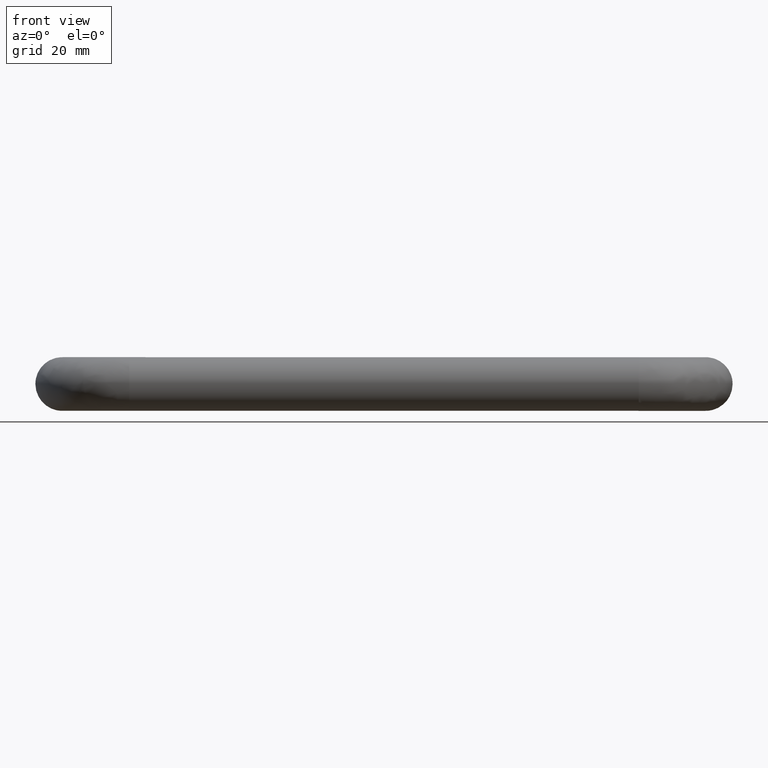
[diagram: clean part render]
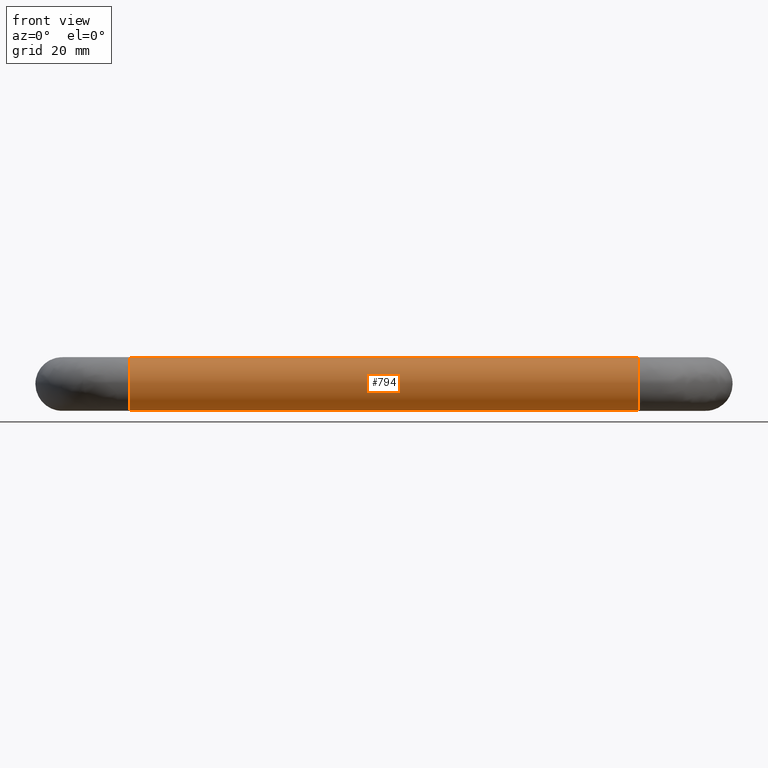
[diagram: same view with one face highlighted and labeled with its STEP entity id]
A machine part, front view. The second image highlights one B-rep face of the part: STEP entity #794.
In plain terms, the highlighted face is a freeform B-spline surface patch.
Its self-contained STEP definition (entity closure, byte-faithful):
#624=CARTESIAN_POINT('',(10.124999941214483,-30.521972536820851,2.224245948408881));
#625=CARTESIAN_POINT('',(10.124999941214483,-30.856101220587441,2.896940181352409));
#626=CARTESIAN_POINT('',(10.124999941214480,-31.373128144938558,3.441772878468769));
#627=CARTESIAN_POINT('',(10.124999941214483,-34.814901023407330,7.068644733530205));
#628=CARTESIAN_POINT('',(10.124999941214480,-38.441772878468768,3.626871855061437));
#629=CARTESIAN_POINT('',(10.124999941214483,-42.068644733530206,0.185098976592668));
#630=CARTESIAN_POINT('',(10.124999941214480,-38.626871855061438,-3.441772878468769));
#631=CARTESIAN_POINT('',(10.124999941214483,-35.185098976592663,-7.068644733530205));
#632=CARTESIAN_POINT('',(10.124999941214480,-31.558227121531232,-3.626871855061437));
#633=CARTESIAN_POINT('',(109.934375002968050,-30.521972536820840,2.224245948408881));
#634=CARTESIAN_POINT('',(109.934375002968100,-30.856101220587430,2.896940181352409));
#635=CARTESIAN_POINT('',(109.934375002968100,-31.373128144938558,3.441772878468769));
#636=CARTESIAN_POINT('',(109.934375002968050,-34.814901023407316,7.068644733530205));
#637=CARTESIAN_POINT('',(109.934375002968100,-38.441772878468761,3.626871855061437));
#638=CARTESIAN_POINT('',(109.934375002968050,-42.068644733530206,0.185098976592668));
#639=CARTESIAN_POINT('',(109.934375002968100,-38.626871855061431,-3.441772878468769));
#640=CARTESIAN_POINT('',(109.934375002968050,-35.185098976592663,-7.068644733530205));
#641=CARTESIAN_POINT('',(109.934375002968100,-31.558227121531232,-3.626871855061437));
#649=(BOUNDED_SURFACE()B_SPLINE_SURFACE(2,1,((#624,#633),(#625,#634),(#626,#635),(#627,#636),(#628,#637),(#629,#638),(#630,#639),(#631,#640),(#632,#641)),.UNSPECIFIED.,.F.,.F.,.U.)B_SPLINE_SURFACE_WITH_KNOTS((3,2,2,2,3),(2,2),(0.0,1.656854249492380,9.941125496954278,18.225396744416180,26.509667991878079),(0.0,99.809375061753585),.UNSPECIFIED.)GEOMETRIC_REPRESENTATION_ITEM()RATIONAL_B_SPLINE_SURFACE(((0.906274169979695,0.906274169979695),(0.941421356237309,0.941421356237309),(1.0,1.0),(0.707106781186548,0.707106781186548),(1.0,1.0),(0.707106781186548,0.707106781186548),(1.0,1.0),(0.707106781186548,0.707106781186548),(1.0,1.0)))REPRESENTATION_ITEM('')SURFACE());
#650=CARTESIAN_POINT('',(107.500000000000000,-30.521972536837890,2.224245948443190));
#651=VERTEX_POINT('',#650);
#652=CARTESIAN_POINT('',(107.500000001461900,-35.348666263710392,4.987828368794403));
#653=VERTEX_POINT('',#652);
#654=CARTESIAN_POINT('',(107.500000000000000,-30.521972536837890,2.224245948443190));
#655=CARTESIAN_POINT('',(107.500000000000000,-31.900695591566350,4.999999999999998));
#656=CARTESIAN_POINT('',(107.500000000000000,-35.0,5.0));
#657=CARTESIAN_POINT('',(107.499999999999960,-35.174545585228110,5.0));
#658=CARTESIAN_POINT('',(107.500000001461910,-35.348666263710385,4.987828368794403));
#666=(BOUNDED_CURVE()B_SPLINE_CURVE(2,(#654,#655,#656,#657,#658),.UNSPECIFIED.,.F.,.U.)B_SPLINE_CURVE_WITH_KNOTS((3,2,3),(0.575619190624772,0.750000000000000,0.762166313867127),.UNSPECIFIED.)CURVE()GEOMETRIC_REPRESENTATION_ITEM()RATIONAL_B_SPLINE_CURVE((0.876408099966359,0.795700173771178,1.0,0.985746276681450,0.972879875536249))REPRESENTATION_ITEM(''));
#667=EDGE_CURVE('',#651,#653,#666,.T.);
#668=ORIENTED_EDGE('',*,*,#667,.F.);
#669=CARTESIAN_POINT('',(12.499999999949400,-30.521972536863860,2.224245948429610));
#670=VERTEX_POINT('',#669);
#671=CARTESIAN_POINT('',(12.499999999949400,-30.521972536863860,2.224245948429610));
#672=CARTESIAN_POINT('',(107.500000000000000,-30.521972536837890,2.224245948443190));
#673=QUASI_UNIFORM_CURVE('',1,(#671,#672),.UNSPECIFIED.,.F.,.U.);
#674=EDGE_CURVE('',#670,#651,#673,.T.);
#675=ORIENTED_EDGE('',*,*,#674,.F.);
#676=CARTESIAN_POINT('',(12.499999999521330,-34.937169799960493,4.999605221011253));
#677=VERTEX_POINT('',#676);
#678=CARTESIAN_POINT('',(12.499999999949399,-30.521972536863856,2.224245948429611));
#679=CARTESIAN_POINT('',(12.499999999817589,-31.881425326504711,4.961203581291151));
#680=CARTESIAN_POINT('',(12.499999999521334,-34.937169799960486,4.999605221011253));
#688=(BOUNDED_CURVE()B_SPLINE_CURVE(2,(#678,#679,#680),.UNSPECIFIED.,.F.,.U.)B_SPLINE_CURVE_WITH_KNOTS((3,3),(0.575619190623804,0.747784295877918),.UNSPECIFIED.)CURVE()GEOMETRIC_REPRESENTATION_ITEM()RATIONAL_B_SPLINE_CURVE((0.876408099967255,0.796725658657972,0.994854295543177))REPRESENTATION_ITEM(''));
#689=EDGE_CURVE('',#670,#677,#688,.T.);
#690=ORIENTED_EDGE('',*,*,#689,.T.);
#691=CARTESIAN_POINT('',(12.500000000000000,-40.0,0.0));
#692=VERTEX_POINT('',#691);
#693=CARTESIAN_POINT('',(12.499999999521329,-34.937169799960486,4.999605221011254));
#694=CARTESIAN_POINT('',(12.500000000000002,-34.968583659417725,5.0));
#695=CARTESIAN_POINT('',(12.500000000000000,-35.0,5.0));
#696=CARTESIAN_POINT('',(12.500000000000000,-39.999999999999993,5.000000000000001));
#697=CARTESIAN_POINT('',(12.500000000000000,-40.0,0.0));
#705=(BOUNDED_CURVE()B_SPLINE_CURVE(2,(#693,#694,#695,#696,#697),.UNSPECIFIED.,.F.,.U.)B_SPLINE_CURVE_WITH_KNOTS((3,2,3),(0.747784295877917,0.750000000000000,1.0),.UNSPECIFIED.)CURVE()GEOMETRIC_REPRESENTATION_ITEM()RATIONAL_B_SPLINE_CURVE((0.994854295543175,0.997404141150979,1.0,0.707106781186548,1.0))REPRESENTATION_ITEM(''));
#706=EDGE_CURVE('',#677,#692,#705,.T.);
#707=ORIENTED_EDGE('',*,*,#706,.T.);
#708=CARTESIAN_POINT('',(12.499999942683930,-35.348666308206170,-4.987828365683995));
#709=VERTEX_POINT('',#708);
#710=CARTESIAN_POINT('',(12.500000000000000,-40.0,0.0));
#711=CARTESIAN_POINT('',(12.500000000000000,-40.0,-4.662684142007196));
#712=CARTESIAN_POINT('',(12.499999942683930,-35.348666308206170,-4.987828365683995));
#720=(BOUNDED_CURVE()B_SPLINE_CURVE(2,(#710,#711,#712),.UNSPECIFIED.,.F.,.U.)B_SPLINE_CURVE_WITH_KNOTS((3,3),(0.0,0.237833683064406),.UNSPECIFIED.)CURVE()GEOMETRIC_REPRESENTATION_ITEM()RATIONAL_B_SPLINE_CURVE((1.0,0.721360508100031,0.972879869046176))REPRESENTATION_ITEM(''));
#721=EDGE_CURVE('',#692,#709,#720,.T.);
#722=ORIENTED_EDGE('',*,*,#721,.T.);
#723=CARTESIAN_POINT('',(12.500000000000000,-31.558228442135000,-3.626873108266699));
#724=VERTEX_POINT('',#723);
#725=CARTESIAN_POINT('',(12.499999942683939,-35.348666308206170,-4.987828365683995));
#726=CARTESIAN_POINT('',(12.500000000000002,-35.174545629886815,-4.999999999999999));
#727=CARTESIAN_POINT('',(12.500000000000000,-35.0,-5.0));
#728=CARTESIAN_POINT('',(12.500000000000005,-33.005203325312003,-5.0));
#729=CARTESIAN_POINT('',(12.500000000000000,-31.558228442135000,-3.626873108266699));
#737=(BOUNDED_CURVE()B_SPLINE_CURVE(2,(#725,#726,#727,#728,#729),.UNSPECIFIED.,.F.,.U.)B_SPLINE_CURVE_WITH_KNOTS((3,2,3),(0.237833683064406,0.250000000000000,0.371049471708747),.UNSPECIFIED.)CURVE()GEOMETRIC_REPRESENTATION_ITEM()RATIONAL_B_SPLINE_CURVE((0.972879869046176,0.985746273086517,1.0,0.858181722382228,0.853699665438662))REPRESENTATION_ITEM(''));
#738=EDGE_CURVE('',#709,#724,#737,.T.);
#739=ORIENTED_EDGE('',*,*,#738,.T.);
#740=CARTESIAN_POINT('',(107.500000000324110,-31.558227913072550,-3.626872605960986));
#741=VERTEX_POINT('',#740);
#742=CARTESIAN_POINT('',(12.500000000000000,-31.558228442135000,-3.626873108266699));
#743=CARTESIAN_POINT('',(107.500000000324110,-31.558227913072550,-3.626872605960986));
#744=QUASI_UNIFORM_CURVE('',1,(#742,#743),.UNSPECIFIED.,.F.,.U.);
#745=EDGE_CURVE('',#724,#741,#744,.T.);
#746=ORIENTED_EDGE('',*,*,#745,.T.);
#747=CARTESIAN_POINT('',(107.500000001026810,-34.937169798926647,-4.999605220998261));
#748=VERTEX_POINT('',#747);
#749=CARTESIAN_POINT('',(107.500000001026790,-34.937169798926654,-4.999605220998261));
#750=CARTESIAN_POINT('',(107.500000000619520,-32.978853110185419,-4.974994990965148));
#751=CARTESIAN_POINT('',(107.500000000324090,-31.558227913072557,-3.626872605960986));
#759=(BOUNDED_CURVE()B_SPLINE_CURVE(2,(#749,#750,#751),.UNSPECIFIED.,.F.,.U.)B_SPLINE_CURVE_WITH_KNOTS((3,3),(0.252215704194816,0.371049493739702),.UNSPECIFIED.)CURVE()GEOMETRIC_REPRESENTATION_ITEM()RATIONAL_B_SPLINE_CURVE((0.994854295375772,0.858099656915595,0.853699663807202))REPRESENTATION_ITEM(''));
#760=EDGE_CURVE('',#748,#741,#759,.T.);
#761=ORIENTED_EDGE('',*,*,#760,.F.);
#762=CARTESIAN_POINT('',(107.500000000000000,-40.0,0.0));
#763=VERTEX_POINT('',#762);
#764=CARTESIAN_POINT('',(107.500000000000000,-40.0,0.0));
#765=CARTESIAN_POINT('',(107.500000000000000,-39.999999999999993,-5.000000000000001));
#766=CARTESIAN_POINT('',(107.500000000000000,-35.0,-5.0));
#767=CARTESIAN_POINT('',(107.500000000000040,-34.968583658383764,-5.000000000000001));
#768=CARTESIAN_POINT('',(107.500000001026790,-34.937169798926654,-4.999605220998261));
#776=(BOUNDED_CURVE()B_SPLINE_CURVE(2,(#764,#765,#766,#767,#768),.UNSPECIFIED.,.F.,.U.)B_SPLINE_CURVE_WITH_KNOTS((3,2,3),(0.0,0.250000000000000,0.252215704194816),.UNSPECIFIED.)CURVE()GEOMETRIC_REPRESENTATION_ITEM()RATIONAL_B_SPLINE_CURVE((1.0,0.707106781186548,1.0,0.997404141065767,0.994854295375772))REPRESENTATION_ITEM(''));
#777=EDGE_CURVE('',#763,#748,#776,.T.);
#778=ORIENTED_EDGE('',*,*,#777,.F.);
#779=CARTESIAN_POINT('',(107.500000001461870,-35.348666263710385,4.987828368794403));
#780=CARTESIAN_POINT('',(107.499999999999990,-40.000000000000007,4.662684225400630));
#781=CARTESIAN_POINT('',(107.500000000000000,-40.0,0.0));
#789=(BOUNDED_CURVE()B_SPLINE_CURVE(2,(#779,#780,#781),.UNSPECIFIED.,.F.,.U.)B_SPLINE_CURVE_WITH_KNOTS((3,3),(0.762166313867126,1.0),.UNSPECIFIED.)CURVE()GEOMETRIC_REPRESENTATION_ITEM()RATIONAL_B_SPLINE_CURVE((0.972879875536250,0.721360504505097,1.0))REPRESENTATION_ITEM(''));
#790=EDGE_CURVE('',#653,#763,#789,.T.);
#791=ORIENTED_EDGE('',*,*,#790,.F.);
#792=EDGE_LOOP('',(#668,#675,#690,#707,#722,#739,#746,#761,#778,#791));
#793=FACE_OUTER_BOUND('',#792,.T.);
#794=ADVANCED_FACE('',(#793),#649,.T.);